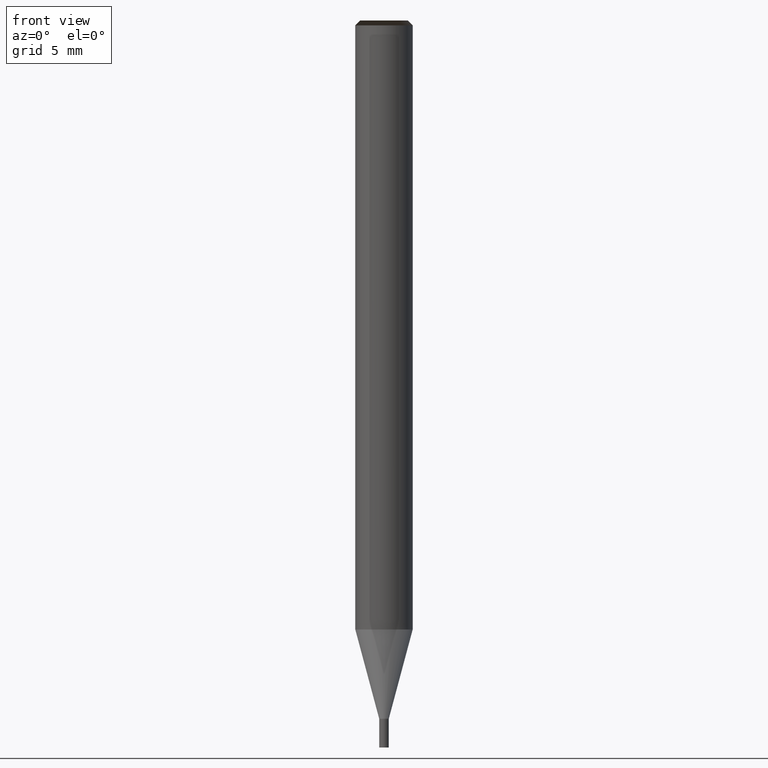
[diagram: clean part render]
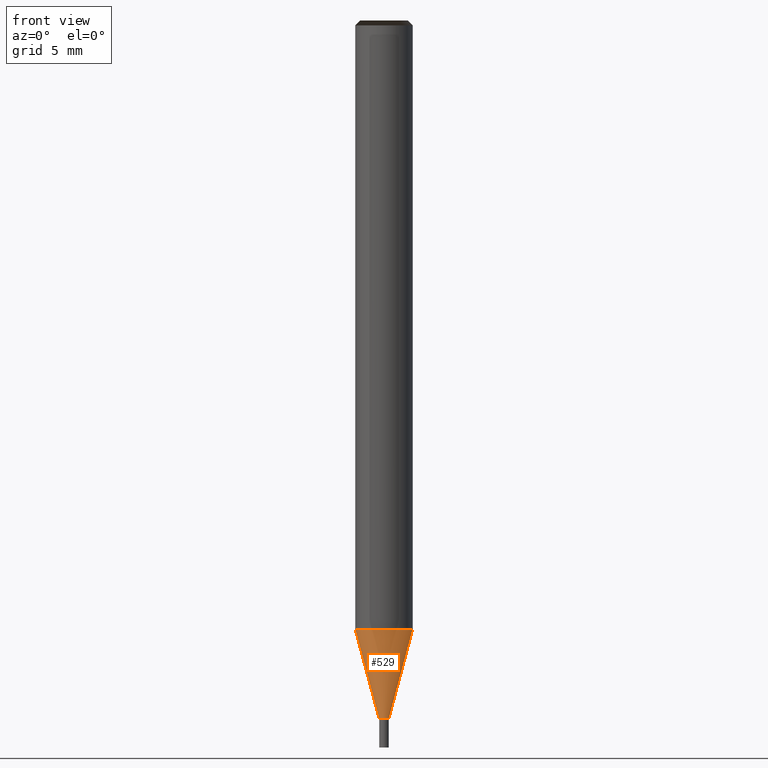
[diagram: same view with one face highlighted and labeled with its STEP entity id]
A machine part, front view. The second image highlights one B-rep face of the part: STEP entity #529.
In plain terms, the highlighted face is a freeform B-spline surface patch.
Its self-contained STEP definition (entity closure, byte-faithful):
#224=CARTESIAN_POINT('',(0.25,0.0,-5.0));
#228=CARTESIAN_POINT('',(-0.25,0.0,-5.0));
#233=CARTESIAN_POINT('',(-0.25,-0.25,-5.0));
#234=CARTESIAN_POINT('',(0.0,-0.25,-5.0));
#235=CARTESIAN_POINT('',(0.25,-0.25,-5.0));
#236=CARTESIAN_POINT('',(1.5,0.0,-0.334936490539));
#240=CARTESIAN_POINT('',(-1.5,0.0,-0.334936490539));
#257=CARTESIAN_POINT('',(-1.5,-1.5,-0.334936490539));
#258=CARTESIAN_POINT('',(0.0,-1.5,-0.334936490539));
#259=CARTESIAN_POINT('',(1.5,-1.5,-0.334936490539));
#510=(
BOUNDED_SURFACE()
B_SPLINE_SURFACE(1,2,(
(#228,#233,#234,#235,#224),
(#240,#257,#258,#259,#236)
), .UNSPECIFIED.,.F.,.F.,.F.)
B_SPLINE_SURFACE_WITH_KNOTS((2,2),(3,2,3),(
0.0,1.0),(
0.0,0.5,1.0), .UNSPECIFIED.)
GEOMETRIC_REPRESENTATION_ITEM()
RATIONAL_B_SPLINE_SURFACE(((1.0,0.707106781187,1.0,0.707106781187,1.0),
(1.0,0.707106781187,1.0,0.707106781187,1.0)
))
REPRESENTATION_ITEM('')
SURFACE()
);
#511=(
BOUNDED_CURVE()
B_SPLINE_CURVE(2,(#224,#235,#234,#233,#228),.UNSPECIFIED.,.F.,.F.)
B_SPLINE_CURVE_WITH_KNOTS((3,2,3),
(0.0,0.5,1.0),.UNSPECIFIED.)
CURVE()
GEOMETRIC_REPRESENTATION_ITEM()
RATIONAL_B_SPLINE_CURVE((1.0,0.707106781187,1.0,0.707106781187,1.0))
REPRESENTATION_ITEM('')
);
#512=(
BOUNDED_CURVE()
B_SPLINE_CURVE(1,(#228,#240),.UNSPECIFIED.,.F.,.F.)
B_SPLINE_CURVE_WITH_KNOTS((2,2),
(0.0,1.0),.UNSPECIFIED.)
CURVE()
GEOMETRIC_REPRESENTATION_ITEM()
RATIONAL_B_SPLINE_CURVE((1.0,1.0))
REPRESENTATION_ITEM('')
);
#513=(
BOUNDED_CURVE()
B_SPLINE_CURVE(2,(#240,#257,#258,#259,#236),.UNSPECIFIED.,.F.,.F.)
B_SPLINE_CURVE_WITH_KNOTS((3,2,3),
(0.0,0.5,1.0),.UNSPECIFIED.)
CURVE()
GEOMETRIC_REPRESENTATION_ITEM()
RATIONAL_B_SPLINE_CURVE((1.0,0.707106781187,1.0,0.707106781187,1.0))
REPRESENTATION_ITEM('')
);
#514=(
BOUNDED_CURVE()
B_SPLINE_CURVE(1,(#236,#224),.UNSPECIFIED.,.F.,.F.)
B_SPLINE_CURVE_WITH_KNOTS((2,2),
(0.0,1.0),.UNSPECIFIED.)
CURVE()
GEOMETRIC_REPRESENTATION_ITEM()
RATIONAL_B_SPLINE_CURVE((1.0,1.0))
REPRESENTATION_ITEM('')
);
#515=VERTEX_POINT('',#224);
#516=VERTEX_POINT('',#228);
#517=VERTEX_POINT('',#236);
#518=VERTEX_POINT('',#240);
#519=EDGE_CURVE('',#515,#516,#511,.T.);
#520=EDGE_CURVE('',#516,#518,#512,.T.);
#521=EDGE_CURVE('',#518,#517,#513,.T.);
#522=EDGE_CURVE('',#517,#515,#514,.T.);
#523=ORIENTED_EDGE('',*,*,#519,.T.);
#524=ORIENTED_EDGE('',*,*,#520,.T.);
#525=ORIENTED_EDGE('',*,*,#521,.T.);
#526=ORIENTED_EDGE('',*,*,#522,.T.);
#527=EDGE_LOOP('',(#523,#524,#525,#526));
#528=FACE_OUTER_BOUND('',#527,.T.);
#529=ADVANCED_FACE('',(#528),#510,.T.);